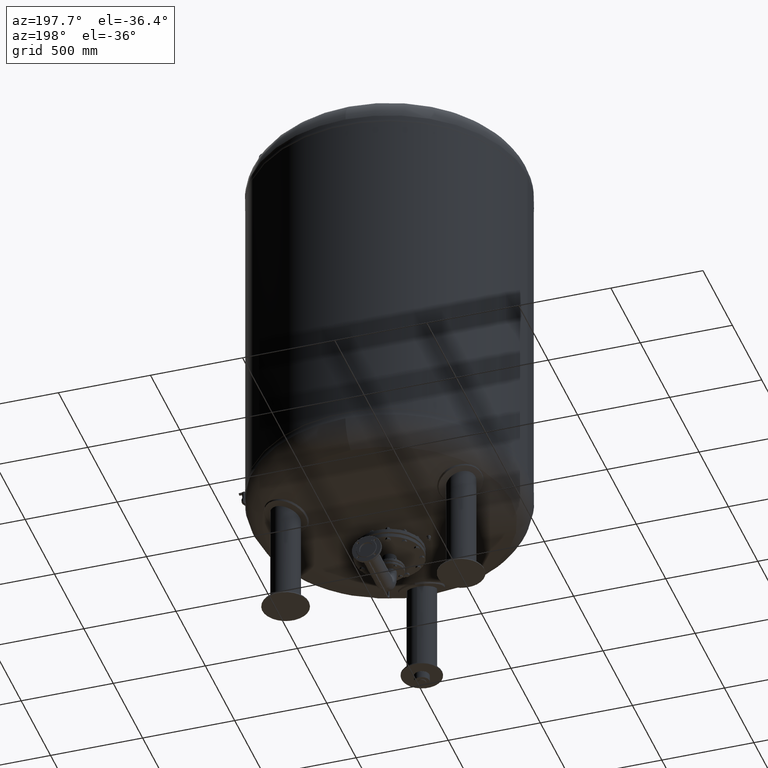
[diagram: clean part render]
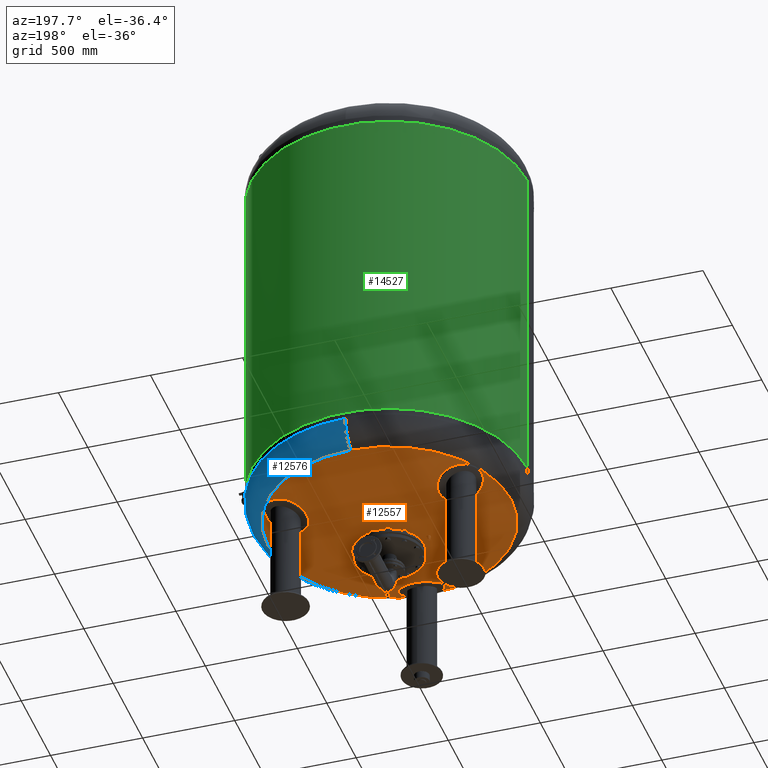
[diagram: same view with three faces highlighted in distinct colors, each labeled with its STEP entity id]
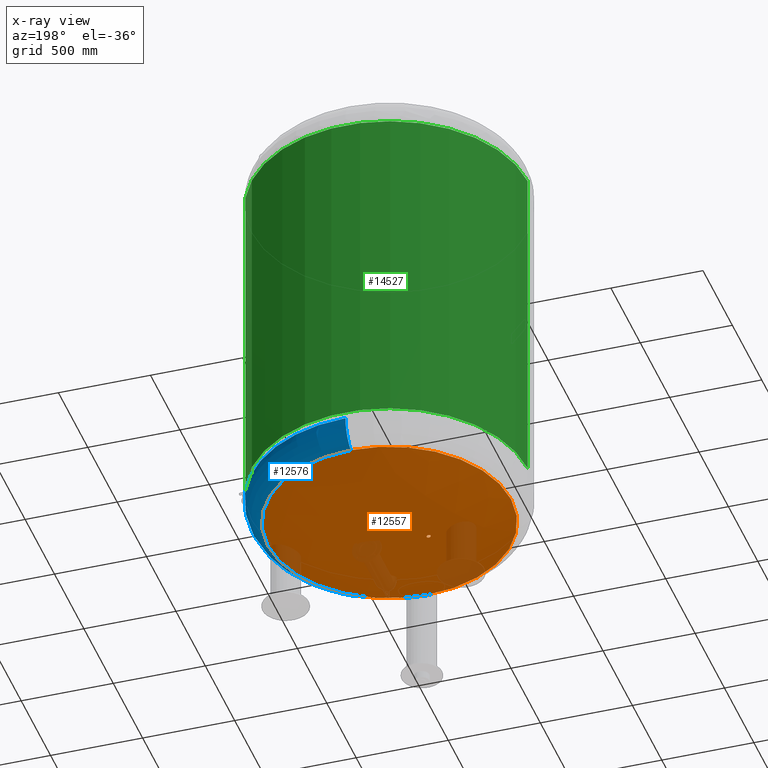
[diagram: x-ray of the same camera — body ghosted, the three highlighted faces saturated]
A machine part, auxiliary view with three faces highlighted in distinct colors.
The next image is the same camera in x-ray (body ghosted, the three faces saturated) — at least one of them is partly hidden behind the body in this view.
Their STEP definitions:

[orange] entity #12557 — the highlighted spherical surface has radius 1509 mm.
#11943=CARTESIAN_POINT('',(-212.755018225922980,10.650000000000025,504.111490197582730));
#11944=VERTEX_POINT('',#11943);
#11960=CARTESIAN_POINT('',(-212.755018225922920,-10.649999999999977,504.111490197582730));
#11961=VERTEX_POINT('',#11960);
#11968=CARTESIAN_POINT('',(-212.755018225922920,-10.649999999999977,504.111490197582730));
#11969=CARTESIAN_POINT('',(-213.419011675303470,-10.649999999999977,504.206054107471520));
#11970=CARTESIAN_POINT('',(-214.105750002547010,-10.586002935223853,504.303859995531640));
#11971=CARTESIAN_POINT('',(-215.471998216119350,-10.316322565205640,504.498448015527060));
#11972=CARTESIAN_POINT('',(-216.151519234566820,-10.110696799189359,504.595231725685490));
#11973=CARTESIAN_POINT('',(-217.454993578020150,-9.566700205802199,504.780889696093200));
#11974=CARTESIAN_POINT('',(-218.079979560205970,-9.227897507145640,504.869911021596410));
#11975=CARTESIAN_POINT('',(-219.235911791307670,-8.444653831775536,505.034562693183770));
#11976=CARTESIAN_POINT('',(-219.766824716640490,-8.000162672841055,505.110188265454330));
#11977=CARTESIAN_POINT('',(-220.705161963617570,-7.054045017024349,505.243851513287550));
#11978=CARTESIAN_POINT('',(-221.144925246937730,-6.520392992667618,505.306495787971980));
#11979=CARTESIAN_POINT('',(-221.920233921404840,-5.358190494648129,505.416940142047510));
#11980=CARTESIAN_POINT('',(-222.255826242709650,-4.729671961427570,505.464746877156980));
#11981=CARTESIAN_POINT('',(-222.794857826027850,-3.418493427039524,505.541535204704360));
#11982=CARTESIAN_POINT('',(-222.998727676562230,-2.734783845876105,505.570578117718240));
#11983=CARTESIAN_POINT('',(-223.266162948007600,-1.359800715734586,505.608676548802070));
#11984=CARTESIAN_POINT('',(-223.329671080674100,-0.668515798513802,505.617723900810230));
#11985=CARTESIAN_POINT('',(-223.329671080674100,0.668515798513863,505.617723900810230));
#11986=CARTESIAN_POINT('',(-223.266162948007550,1.359800715734639,505.608676548802070));
#11987=CARTESIAN_POINT('',(-222.998727676562170,2.734783845876161,505.570578117718240));
#11988=CARTESIAN_POINT('',(-222.794857826027790,3.418493427039572,505.541535204704360));
#11989=CARTESIAN_POINT('',(-222.255826242709620,4.729671961427616,505.464746877156930));
#11990=CARTESIAN_POINT('',(-221.920233921404840,5.358190494648194,505.416940142047510));
#11991=CARTESIAN_POINT('',(-221.144925246937730,6.520392992667670,505.306495787971980));
#11992=CARTESIAN_POINT('',(-220.705161963617600,7.054045017024412,505.243851513287320));
#11993=CARTESIAN_POINT('',(-219.766824716640540,8.000162672841116,505.110188265454100));
#11994=CARTESIAN_POINT('',(-219.235911791307670,8.444653831775581,505.034562693183770));
#11995=CARTESIAN_POINT('',(-218.079979560205970,9.227897507145675,504.869911021596410));
#11996=CARTESIAN_POINT('',(-217.454993578020120,9.566700205802249,504.780889696093200));
#11997=CARTESIAN_POINT('',(-216.151519234566790,10.110696799189398,504.595231725685490));
#11998=CARTESIAN_POINT('',(-215.471998216119350,10.316322565205695,504.498448015527060));
#11999=CARTESIAN_POINT('',(-214.105750002547010,10.586002935223901,504.303859995531640));
#12000=CARTESIAN_POINT('',(-213.419011675303580,10.650000000000027,504.206054107471290));
#12001=CARTESIAN_POINT('',(-212.755018225923010,10.650000000000025,504.111490197582500));
#12002=B_SPLINE_CURVE_WITH_KNOTS('',3,(#11968,#11969,#11970,#11971,#11972,#11973,#11974,#11975,#11976,#11977,#11978,#11979,#11980,#11981,#11982,#11983,#11984,#11985,#11986,#11987,#11988,#11989,#11990,#11991,#11992,#11993,#11994,#11995,#11996,#11997,#11998,#11999,#12000,#12001),.UNSPECIFIED.,.F.,.U.,(4,2,2,2,2,2,2,2,2,2,2,2,2,2,2,2,4),(32.141065367889837,34.153145561337297,36.165225754784764,38.177305948232231,40.189386141679691,42.194933537221189,44.200480932762694,46.206028328304200,48.211575723845698,50.217123119387196,52.222670514928701,54.228217910470207,56.233765306011705,58.245845499459165,60.257925692906625,62.270005886354085,64.282086079801545),.UNSPECIFIED.);
#12003=EDGE_CURVE('',#11961,#11944,#12002,.T.);
#12456=CARTESIAN_POINT('',(-4.647817E-014,-660.606666666666800,641.283437133770350));
#12457=VERTEX_POINT('',#12456);
#12473=CARTESIAN_POINT('',(-1.273765E-013,660.606666666666800,641.283437133770800));
#12474=VERTEX_POINT('',#12473);
#12482=CARTESIAN_POINT('',(-660.606666666666800,-2.797401E-014,641.283437133770460));
#12483=VERTEX_POINT('',#12482);
#12484=CARTESIAN_POINT('',(-2.617994E-014,-2.797401E-014,641.283437133770580));
#12485=DIRECTION('',(0.0,0.0,1.0));
#12486=DIRECTION('',(-1.0,0.0,0.0));
#12487=AXIS2_PLACEMENT_3D('',#12484,#12485,#12486);
#12488=CIRCLE('',#12487,660.606666666666800);
#12489=EDGE_CURVE('',#12474,#12483,#12488,.T.);
#12491=CARTESIAN_POINT('',(-2.617994E-014,-2.797401E-014,641.283437133770580));
#12492=DIRECTION('',(0.0,0.0,1.0));
#12493=DIRECTION('',(-1.0,0.0,0.0));
#12494=AXIS2_PLACEMENT_3D('',#12491,#12492,#12493);
#12495=CIRCLE('',#12494,660.606666666666800);
#12496=EDGE_CURVE('',#12483,#12457,#12495,.T.);
#12501=CARTESIAN_POINT('',(-3.455040E-013,-2.771988E-013,1998.0));
#12502=DIRECTION('',(0.0,-1.0,0.0));
#12503=DIRECTION('',(1.0,0.0,0.0));
#12504=AXIS2_PLACEMENT_3D('',#12501,#12502,#12503);
#12505=SPHERICAL_SURFACE('',#12504,1509.0);
#12506=ORIENTED_EDGE('',*,*,#12496,.F.);
#12507=ORIENTED_EDGE('',*,*,#12489,.F.);
#12508=CARTESIAN_POINT('',(-2.617994E-014,-2.797401E-014,641.283437133770580));
#12509=DIRECTION('',(0.0,0.0,1.0));
#12510=DIRECTION('',(-1.0,0.0,0.0));
#12511=AXIS2_PLACEMENT_3D('',#12508,#12509,#12510);
#12512=CIRCLE('',#12511,660.606666666666800);
#12513=EDGE_CURVE('',#12457,#12474,#12512,.T.);
#12514=ORIENTED_EDGE('',*,*,#12513,.F.);
#12515=EDGE_LOOP('',(#12506,#12507,#12514));
#12516=FACE_OUTER_BOUND('',#12515,.T.);
#12517=CARTESIAN_POINT('',(-212.755018225922980,10.650000000000025,504.111490197582730));
#12518=CARTESIAN_POINT('',(-212.091534121174110,10.650000000000023,504.016998826993470));
#12519=CARTESIAN_POINT('',(-211.405305255165390,10.586100987067523,503.919270935515160));
#12520=CARTESIAN_POINT('',(-210.040011582764720,10.316816305665068,503.724841128104740));
#12521=CARTESIAN_POINT('',(-209.360935693561150,10.111487975756443,503.628137626765810));
#12522=CARTESIAN_POINT('',(-208.058232058467690,9.568260163338852,503.442631711125220));
#12523=CARTESIAN_POINT('',(-207.433573599439140,9.229929999631521,503.353682503425660));
#12524=CARTESIAN_POINT('',(-206.278140030699460,8.447763210951747,503.189156544444470));
#12525=CARTESIAN_POINT('',(-205.747398108502670,8.003876573502071,503.113584491733260));
#12526=CARTESIAN_POINT('',(-204.808508501947020,7.058307537946812,502.979898882975760));
#12527=CARTESIAN_POINT('',(-204.368140544053860,6.524478576580964,502.917197598968190));
#12528=CARTESIAN_POINT('',(-203.591752659917630,5.361764591002946,502.806654156464330));
#12529=CARTESIAN_POINT('',(-203.255685649168270,4.732911647791822,502.758805264275910));
#12530=CARTESIAN_POINT('',(-202.715880669299140,3.420948201203286,502.681949057669500));
#12531=CARTESIAN_POINT('',(-202.511710936321490,2.736786134199858,502.652880250254900));
#12532=CARTESIAN_POINT('',(-202.243876352468700,1.360833829767384,502.614747224724620));
#12533=CARTESIAN_POINT('',(-202.180269001838750,0.669032173576298,502.605691188325640));
#12534=CARTESIAN_POINT('',(-202.180269001838750,-0.668515964924981,502.605691188325640));
#12535=CARTESIAN_POINT('',(-202.243778337332200,-1.359800893557784,502.614733269950140));
#12536=CARTESIAN_POINT('',(-202.511218332656630,-2.734783704462489,502.652810115508600));
#12537=CARTESIAN_POINT('',(-202.715091702380590,-3.418492955016180,502.681836727623250));
#12538=CARTESIAN_POINT('',(-203.254131820043630,-4.729670538390643,502.758584032350600));
#12539=CARTESIAN_POINT('',(-203.589729164645410,-5.358188457669904,502.806366051721510));
#12540=CARTESIAN_POINT('',(-204.365048173639280,-6.520389631039324,502.916757297980500));
#12541=CARTESIAN_POINT('',(-204.804816757785550,-7.054040946307282,502.979373235026740));
#12542=CARTESIAN_POINT('',(-205.743164675856750,-8.000158347746877,503.112981698135000));
#12543=CARTESIAN_POINT('',(-206.274083646646060,-8.444649867444356,503.188578951519840));
#12544=CARTESIAN_POINT('',(-207.430027356476640,-9.227894362836144,503.353177533520580));
#12545=CARTESIAN_POINT('',(-208.055018765748740,-9.566697518423954,503.442174143376630));
#12546=CARTESIAN_POINT('',(-209.358502614722480,-10.110695119496913,503.627791147257770));
#12547=CARTESIAN_POINT('',(-210.038027708120440,-10.316321407131081,503.724558611059420));
#12548=CARTESIAN_POINT('',(-211.404282399096330,-10.586002623145955,503.919125267714490));
#12549=CARTESIAN_POINT('',(-212.091023129192620,-10.649999999999977,504.016926053083470));
#12550=CARTESIAN_POINT('',(-212.755018225922920,-10.649999999999977,504.111490197582730));
#12551=B_SPLINE_CURVE_WITH_KNOTS('',3,(#12517,#12518,#12519,#12520,#12521,#12522,#12523,#12524,#12525,#12526,#12527,#12528,#12529,#12530,#12531,#12532,#12533,#12534,#12535,#12536,#12537,#12538,#12539,#12540,#12541,#12542,#12543,#12544,#12545,#12546,#12547,#12548,#12549,#12550),.UNSPECIFIED.,.F.,.U.,(4,2,2,2,2,2,2,2,2,2,2,2,2,2,2,2,4),(0.0,2.010536741104808,4.021073482209616,6.031610223314424,8.042146964419231,10.049243485148079,12.056340005876926,14.063436526605773,16.070533047334621,18.076080942109613,20.081628836884605,22.087176731659596,24.092724626434588,26.104809811798400,28.116894997162213,30.128980182526025,32.141065367889837),.UNSPECIFIED.);
#12552=EDGE_CURVE('',#11944,#11961,#12551,.T.);
#12553=ORIENTED_EDGE('',*,*,#12552,.F.);
#12554=ORIENTED_EDGE('',*,*,#12003,.F.);
#12555=EDGE_LOOP('',(#12553,#12554));
#12556=FACE_BOUND('',#12555,.T.);
#12557=ADVANCED_FACE('',(#12516,#12556),#12505,.T.);

[blue] entity #12576 — the highlighted toroidal blend (fillet) surface has major radius 591 mm and minor (blend) radius 159 mm.
#12422=CARTESIAN_POINT('',(750.0,3.761120E-014,784.237667415898160));
#12423=VERTEX_POINT('',#12422);
#12430=CARTESIAN_POINT('',(-1.628998E-013,750.0,784.237667415898270));
#12431=VERTEX_POINT('',#12430);
#12432=CARTESIAN_POINT('',(-5.075605E-014,-5.423428E-014,784.237667415898160));
#12433=DIRECTION('',(0.0,0.0,1.0));
#12434=DIRECTION('',(-1.0,0.0,0.0));
#12435=AXIS2_PLACEMENT_3D('',#12432,#12433,#12434);
#12436=CIRCLE('',#12435,750.0);
#12437=EDGE_CURVE('',#12423,#12431,#12436,.T.);
#12454=CARTESIAN_POINT('',(-7.105427E-014,-750.0,784.237667415898040));
#12455=VERTEX_POINT('',#12454);
#12456=CARTESIAN_POINT('',(-4.647817E-014,-660.606666666666800,641.283437133770350));
#12457=VERTEX_POINT('',#12456);
#12458=CARTESIAN_POINT('',(-7.105427E-014,-591.0,784.237667415898040));
#12459=DIRECTION('',(1.0,0.0,0.0));
#12460=DIRECTION('',(0.0,-1.0,0.0));
#12461=AXIS2_PLACEMENT_3D('',#12458,#12459,#12460);
#12462=CIRCLE('',#12461,159.0);
#12463=EDGE_CURVE('',#12455,#12457,#12462,.T.);
#12473=CARTESIAN_POINT('',(-1.273765E-013,660.606666666666800,641.283437133770800));
#12474=VERTEX_POINT('',#12473);
#12475=CARTESIAN_POINT('',(-1.434285E-013,591.0,784.237667415898270));
#12476=DIRECTION('',(-1.0,0.0,0.0));
#12477=DIRECTION('',(0.0,1.0,0.0));
#12478=AXIS2_PLACEMENT_3D('',#12475,#12476,#12477);
#12479=CIRCLE('',#12478,159.0);
#12480=EDGE_CURVE('',#12431,#12474,#12479,.T.);
#12508=CARTESIAN_POINT('',(-2.617994E-014,-2.797401E-014,641.283437133770580));
#12509=DIRECTION('',(0.0,0.0,1.0));
#12510=DIRECTION('',(-1.0,0.0,0.0));
#12511=AXIS2_PLACEMENT_3D('',#12508,#12509,#12510);
#12512=CIRCLE('',#12511,660.606666666666800);
#12513=EDGE_CURVE('',#12457,#12474,#12512,.T.);
#12558=CARTESIAN_POINT('',(-7.105427E-014,-5.423428E-014,784.237667415898160));
#12559=DIRECTION('',(-1.719159E-016,-1.836970E-016,1.0));
#12560=DIRECTION('',(0.0,-1.0,0.0));
#12561=AXIS2_PLACEMENT_3D('',#12558,#12559,#12560);
#12562=TOROIDAL_SURFACE('',#12561,591.0,159.0);
#12563=ORIENTED_EDGE('',*,*,#12463,.T.);
#12564=ORIENTED_EDGE('',*,*,#12513,.T.);
#12565=ORIENTED_EDGE('',*,*,#12480,.F.);
#12566=ORIENTED_EDGE('',*,*,#12437,.F.);
#12567=CARTESIAN_POINT('',(-5.075605E-014,-5.423428E-014,784.237667415898160));
#12568=DIRECTION('',(0.0,0.0,1.0));
#12569=DIRECTION('',(-1.0,0.0,0.0));
#12570=AXIS2_PLACEMENT_3D('',#12567,#12568,#12569);
#12571=CIRCLE('',#12570,750.0);
#12572=EDGE_CURVE('',#12455,#12423,#12571,.T.);
#12573=ORIENTED_EDGE('',*,*,#12572,.F.);
#12574=EDGE_LOOP('',(#12563,#12564,#12565,#12566,#12573));
#12575=FACE_OUTER_BOUND('',#12574,.T.);
#12576=ADVANCED_FACE('',(#12575),#12562,.T.);

[green] entity #14527 — the highlighted cylindrical surface (partial cylindrical patch) has radius 750 mm, axis along (0, 0, 1).
#14407=CARTESIAN_POINT('',(750.000000000000910,0.0,2667.0));
#14408=VERTEX_POINT('',#14407);
#14409=CARTESIAN_POINT('',(749.999999999999890,0.0,822.0));
#14410=VERTEX_POINT('',#14409);
#14411=CARTESIAN_POINT('',(750.000000000000910,0.0,2667.0));
#14412=DIRECTION('',(0.0,0.0,-1.0));
#14413=VECTOR('',#14412,1845.0);
#14414=LINE('',#14411,#14413);
#14415=EDGE_CURVE('',#14408,#14410,#14414,.T.);
#14417=CARTESIAN_POINT('',(-750.000000000000570,-9.184548E-014,2667.0));
#14418=VERTEX_POINT('',#14417);
#14426=CARTESIAN_POINT('',(-749.999999999999890,-9.184548E-014,822.000000000000110));
#14427=VERTEX_POINT('',#14426);
#14428=CARTESIAN_POINT('',(-750.000000000000570,-9.184548E-014,2667.0));
#14429=DIRECTION('',(0.0,0.0,-1.0));
#14430=VECTOR('',#14429,1845.0);
#14431=LINE('',#14428,#14430);
#14432=EDGE_CURVE('',#14418,#14427,#14431,.T.);
#14500=CARTESIAN_POINT('',(-1.663310E-014,0.0,822.000000000000110));
#14501=DIRECTION('',(0.0,0.0,1.0));
#14502=DIRECTION('',(1.0,0.0,0.0));
#14503=AXIS2_PLACEMENT_3D('',#14500,#14501,#14502);
#14504=CIRCLE('',#14503,749.999999999999890);
#14505=EDGE_CURVE('',#14410,#14427,#14504,.T.);
#14510=CARTESIAN_POINT('',(8.316550E-015,0.0,2212.250000000000000));
#14511=DIRECTION('',(1.828818E-017,0.0,1.0));
#14512=DIRECTION('',(1.0,0.0,0.0));
#14513=AXIS2_PLACEMENT_3D('',#14510,#14511,#14512);
#14514=CYLINDRICAL_SURFACE('',#14513,750.000000000000570);
#14515=ORIENTED_EDGE('',*,*,#14415,.T.);
#14516=ORIENTED_EDGE('',*,*,#14505,.T.);
#14517=ORIENTED_EDGE('',*,*,#14432,.F.);
#14518=CARTESIAN_POINT('',(1.663310E-014,0.0,2667.0));
#14519=DIRECTION('',(0.0,0.0,1.0));
#14520=DIRECTION('',(1.0,0.0,0.0));
#14521=AXIS2_PLACEMENT_3D('',#14518,#14519,#14520);
#14522=CIRCLE('',#14521,750.000000000000910);
#14523=EDGE_CURVE('',#14408,#14418,#14522,.T.);
#14524=ORIENTED_EDGE('',*,*,#14523,.F.);
#14525=EDGE_LOOP('',(#14515,#14516,#14517,#14524));
#14526=FACE_OUTER_BOUND('',#14525,.T.);
#14527=ADVANCED_FACE('',(#14526),#14514,.T.);